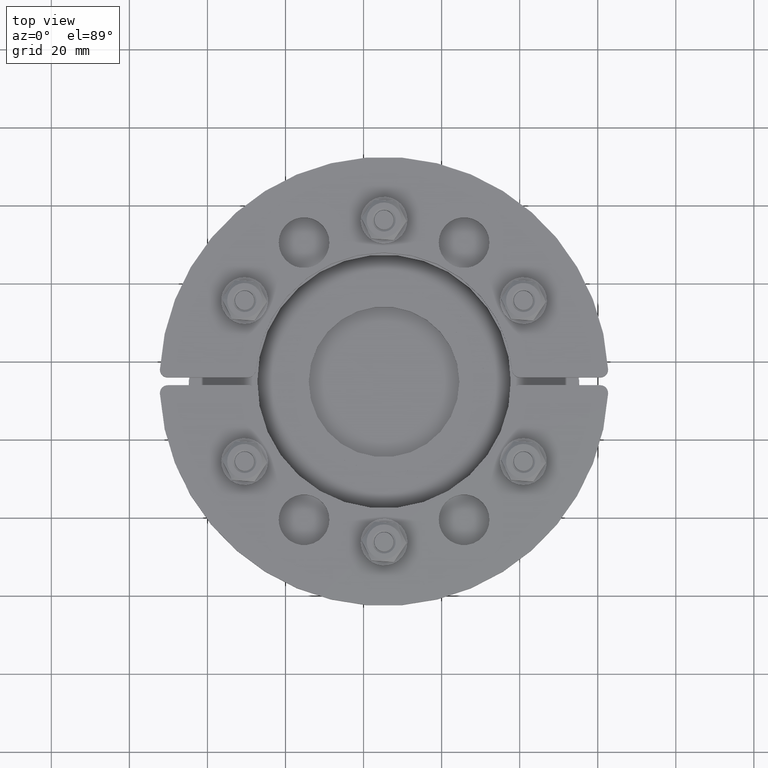
[diagram: clean part render]
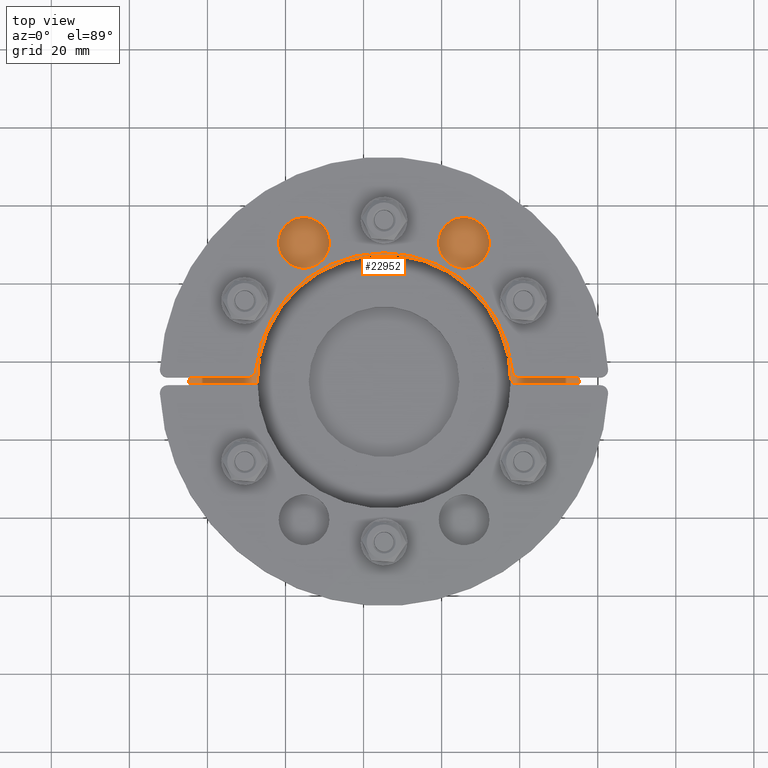
[diagram: same view with one face highlighted and labeled with its STEP entity id]
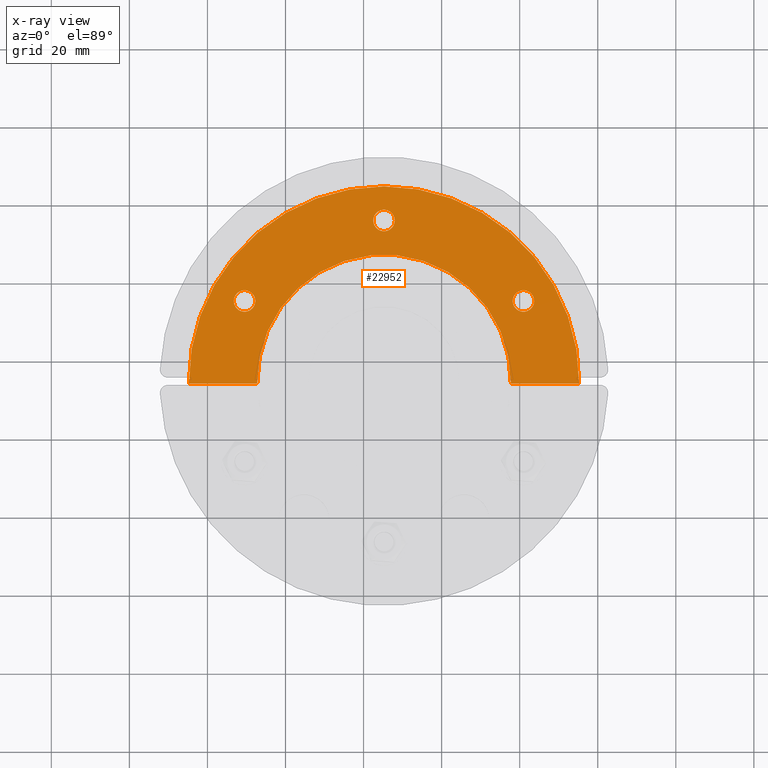
[diagram: x-ray of the same camera — body ghosted, the highlighted face saturated]
A machine part, top view. The second image highlights one B-rep face of the part: STEP entity #22952.
The next image is the same camera in x-ray: the body ghosted, the highlighted face saturated — about 0% of this face is hidden behind the body in this view.
In plain terms, the highlighted planar face has unit normal (0, -0, -1).
Its self-contained STEP definition (entity closure, byte-faithful):
#22745=CARTESIAN_POINT('',(32.973547906108095,20.625000000000004,0.0));
#22746=VERTEX_POINT('',#22745);
#22747=CARTESIAN_POINT('',(35.723547906108088,20.625000000000004,0.0));
#22748=DIRECTION('',(0.0,0.0,1.0));
#22749=DIRECTION('',(1.0,0.0,0.0));
#22750=AXIS2_PLACEMENT_3D('',#22747,#22748,#22749);
#22751=CIRCLE('',#22750,2.75);
#22752=EDGE_CURVE('',#22746,#22746,#22751,.T.);
#22765=CARTESIAN_POINT('',(-38.473547906108095,20.625,0.0));
#22766=VERTEX_POINT('',#22765);
#22767=CARTESIAN_POINT('',(-35.723547906108095,20.625,0.0));
#22768=DIRECTION('',(0.0,0.0,1.0));
#22769=DIRECTION('',(1.0,0.0,0.0));
#22770=AXIS2_PLACEMENT_3D('',#22767,#22768,#22769);
#22771=CIRCLE('',#22770,2.75);
#22772=EDGE_CURVE('',#22766,#22766,#22771,.T.);
#22785=CARTESIAN_POINT('',(-2.750000000000003,41.25,0.0));
#22786=VERTEX_POINT('',#22785);
#22787=CARTESIAN_POINT('',(-2.296213E-015,41.25,0.0));
#22788=DIRECTION('',(0.0,0.0,1.0));
#22789=DIRECTION('',(1.0,0.0,0.0));
#22790=AXIS2_PLACEMENT_3D('',#22787,#22788,#22789);
#22791=CIRCLE('',#22790,2.75);
#22792=EDGE_CURVE('',#22786,#22786,#22791,.T.);
#22805=CARTESIAN_POINT('',(49.997499937496876,-0.5,0.0));
#22806=VERTEX_POINT('',#22805);
#22807=CARTESIAN_POINT('',(32.496153618543843,-0.5,0.0));
#22808=VERTEX_POINT('',#22807);
#22809=CARTESIAN_POINT('',(49.997499937496876,-0.5,0.0));
#22810=DIRECTION('',(-1.0,0.0,0.0));
#22811=VECTOR('',#22810,17.501346318953033);
#22812=LINE('',#22809,#22811);
#22813=EDGE_CURVE('',#22806,#22808,#22812,.T.);
#22836=CARTESIAN_POINT('',(-32.496153618543843,-0.5,0.0));
#22837=VERTEX_POINT('',#22836);
#22838=CARTESIAN_POINT('',(0.0,0.0,0.0));
#22839=DIRECTION('',(0.0,0.0,1.0));
#22840=DIRECTION('',(0.999881649801349,-0.015384615384615,0.0));
#22841=AXIS2_PLACEMENT_3D('',#22838,#22839,#22840);
#22842=CIRCLE('',#22841,32.5);
#22843=EDGE_CURVE('',#22808,#22837,#22842,.T.);
#22861=CARTESIAN_POINT('',(-49.997499937496876,-0.5,0.0));
#22862=VERTEX_POINT('',#22861);
#22863=CARTESIAN_POINT('',(-32.496153618543843,-0.5,0.0));
#22864=DIRECTION('',(-1.0,0.0,0.0));
#22865=VECTOR('',#22864,17.501346318953033);
#22866=LINE('',#22863,#22865);
#22867=EDGE_CURVE('',#22837,#22862,#22866,.T.);
#22885=CARTESIAN_POINT('',(0.0,0.0,0.0));
#22886=DIRECTION('',(0.0,0.0,-1.0));
#22887=DIRECTION('',(-0.999949998749938,0.01,0.0));
#22888=AXIS2_PLACEMENT_3D('',#22885,#22886,#22887);
#22889=CIRCLE('',#22888,50.0);
#22890=EDGE_CURVE('',#22862,#22806,#22889,.T.);
#22932=CARTESIAN_POINT('',(1.904156E-014,23.02642946823774,0.0));
#22933=DIRECTION('',(0.0,0.0,1.0));
#22934=DIRECTION('',(1.0,0.0,0.0));
#22935=AXIS2_PLACEMENT_3D('',#22932,#22933,#22934);
#22936=PLANE('',#22935);
#22937=ORIENTED_EDGE('',*,*,#22890,.T.);
#22938=ORIENTED_EDGE('',*,*,#22813,.T.);
#22939=ORIENTED_EDGE('',*,*,#22843,.T.);
#22940=ORIENTED_EDGE('',*,*,#22867,.T.);
#22941=EDGE_LOOP('',(#22937,#22938,#22939,#22940));
#22942=FACE_OUTER_BOUND('',#22941,.T.);
#22943=ORIENTED_EDGE('',*,*,#22752,.T.);
#22944=EDGE_LOOP('',(#22943));
#22945=FACE_BOUND('',#22944,.T.);
#22946=ORIENTED_EDGE('',*,*,#22772,.T.);
#22947=EDGE_LOOP('',(#22946));
#22948=FACE_BOUND('',#22947,.T.);
#22949=ORIENTED_EDGE('',*,*,#22792,.T.);
#22950=EDGE_LOOP('',(#22949));
#22951=FACE_BOUND('',#22950,.T.);
#22952=ADVANCED_FACE('',(#22942,#22945,#22948,#22951),#22936,.F.);